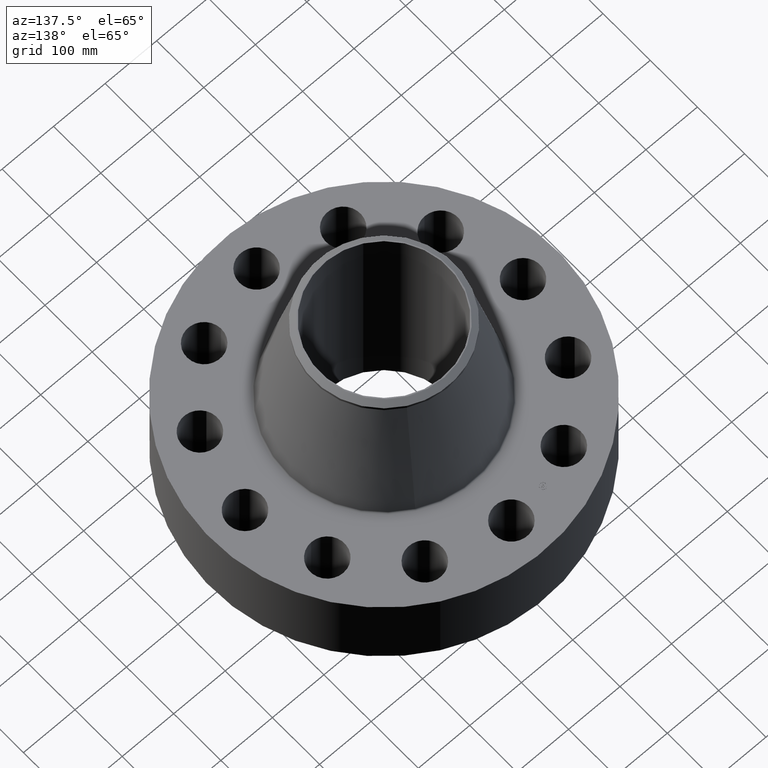
[diagram: clean part render]
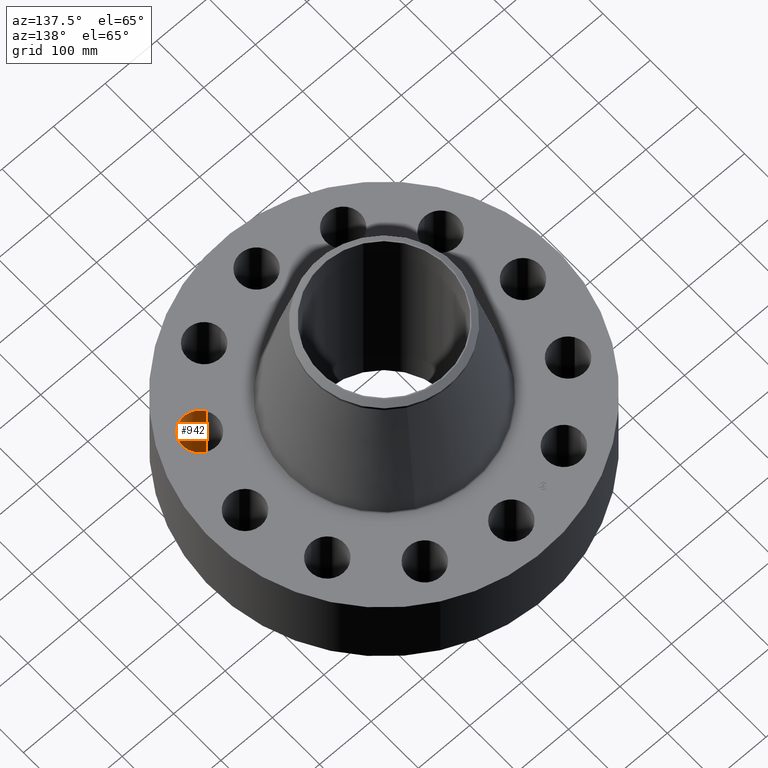
[diagram: same view with one face highlighted and labeled with its STEP entity id]
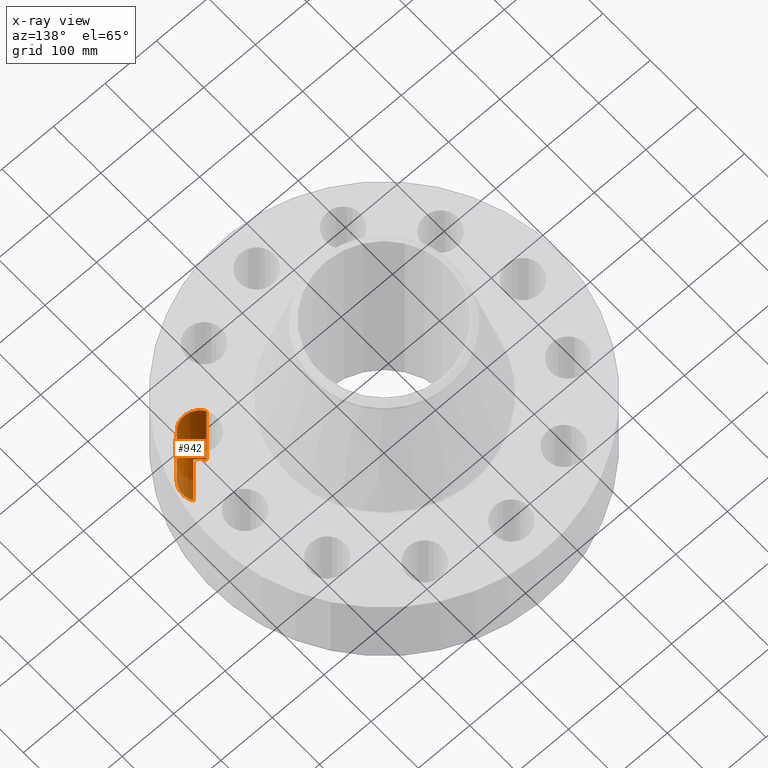
[diagram: x-ray of the same camera — body ghosted, the highlighted face saturated]
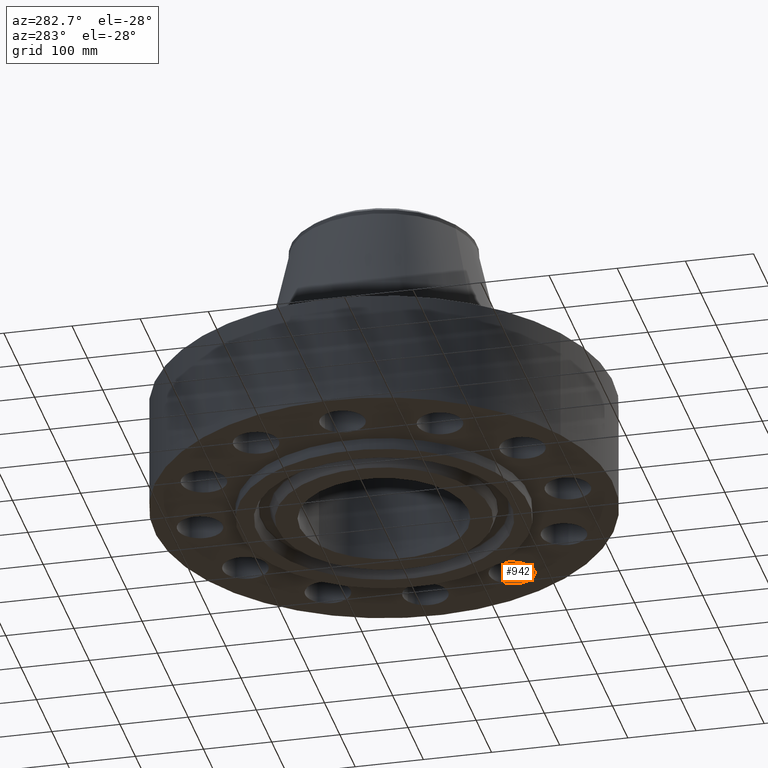
[diagram: same view with one face highlighted and labeled with its STEP entity id]
A machine part, auxiliary view. The second image highlights one B-rep face of the part: STEP entity #942.
The next image is the same camera in x-ray: the body ghosted, the highlighted face saturated — about 22% of this face is hidden behind the body in this view.
A second angle (auxiliary view) of the same face is appended — the face is thin or edge-on in the first view.
In plain terms, the highlighted cylindrical surface (edge-blend (fillet) strip) has radius 33.401 mm, axis along (-0, 0, -1).
Its self-contained STEP definition (entity closure, byte-faithful):
#554=AXIS2_PLACEMENT_3D('Circle Axis2P3D',#552,#553,$) ;
#915=AXIS2_PLACEMENT_3D('Cylinder Axis2P3D',#912,#913,#914) ;
#933=AXIS2_PLACEMENT_3D('Circle Axis2P3D',#931,#932,$) ;
#552=CARTESIAN_POINT('Axis2P3D Location',(9.20151991525,-5.31250000002,0.)) ;
#556=CARTESIAN_POINT('Vertex',(10.3245114745,-4.62831072949,0.)) ;
#558=CARTESIAN_POINT('Vertex',(8.07852835601,-5.99668927055,-6.71378962923E-015)) ;
#912=CARTESIAN_POINT('Axis2P3D Location',(9.20151991525,-5.31250000002,6.49606299215)) ;
#917=CARTESIAN_POINT('Line Origine',(10.3245114745,-4.62831072949,3.25000000001)) ;
#921=CARTESIAN_POINT('Vertex',(10.3245114745,-4.62831072949,6.50000000003)) ;
#924=CARTESIAN_POINT('Line Origine',(8.07852835601,-5.99668927055,3.25000000001)) ;
#928=CARTESIAN_POINT('Vertex',(8.07852835601,-5.99668927055,6.50000000003)) ;
#931=CARTESIAN_POINT('Axis2P3D Location',(9.20151991525,-5.31250000002,6.50000000003)) ;
#553=DIRECTION('Axis2P3D Direction',(0.,0.,-0.0393700787402)) ;
#913=DIRECTION('Axis2P3D Direction',(-0.,0.,-0.0393700787402)) ;
#914=DIRECTION('Axis2P3D XDirection',(-0.0336214951417,-0.0204840954021,0.)) ;
#918=DIRECTION('Vector Direction',(0.,0.,-0.0393700787402)) ;
#925=DIRECTION('Vector Direction',(0.,0.,-0.0393700787402)) ;
#932=DIRECTION('Axis2P3D Direction',(-0.,0.,-0.0393700787402)) ;
#919=VECTOR('Line Direction',#918,0.0393700787402) ;
#926=VECTOR('Line Direction',#925,0.0393700787402) ;
#937=ORIENTED_EDGE('',*,*,#923,.F.) ;
#938=ORIENTED_EDGE('',*,*,#560,.T.) ;
#939=ORIENTED_EDGE('',*,*,#930,.T.) ;
#940=ORIENTED_EDGE('',*,*,#935,.F.) ;
#942=ADVANCED_FACE('PartBody',(#941),#916,.F.) ;
#555=CIRCLE('generated circle',#554,1.31500000001) ;
#934=CIRCLE('generated circle',#933,1.31500000001) ;
#916=CYLINDRICAL_SURFACE('generated cylinder',#915,1.31500000001) ;
#560=EDGE_CURVE('',#557,#559,#555,.T.) ;
#923=EDGE_CURVE('',#557,#922,#920,.F.) ;
#930=EDGE_CURVE('',#559,#929,#927,.F.) ;
#935=EDGE_CURVE('',#922,#929,#934,.T.) ;
#936=EDGE_LOOP('',(#937,#938,#939,#940)) ;
#941=FACE_OUTER_BOUND('',#936,.T.) ;
#920=LINE('Line',#917,#919) ;
#927=LINE('Line',#924,#926) ;
#557=VERTEX_POINT('',#556) ;
#559=VERTEX_POINT('',#558) ;
#922=VERTEX_POINT('',#921) ;
#929=VERTEX_POINT('',#928) ;